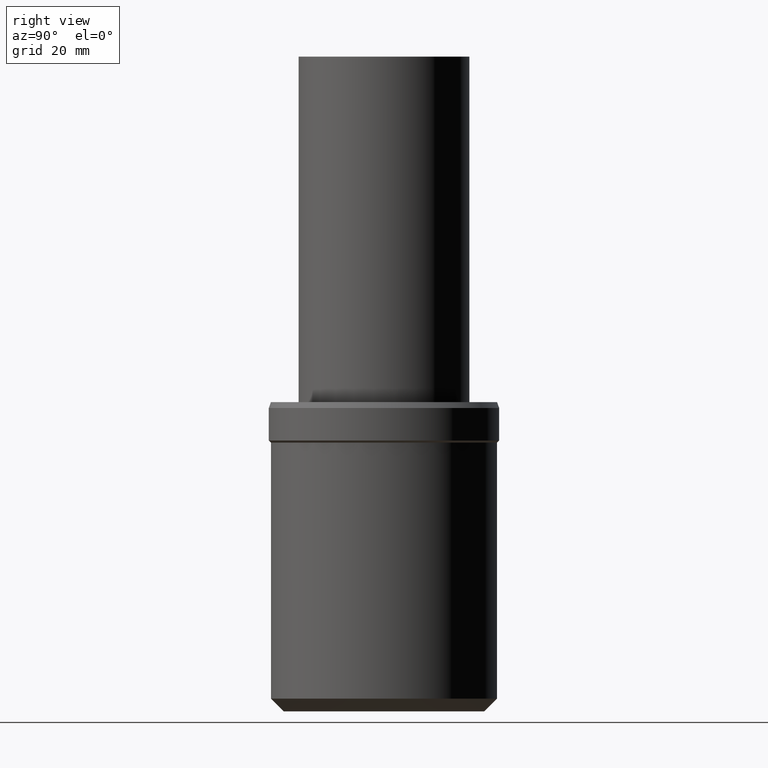
[diagram: clean part render]
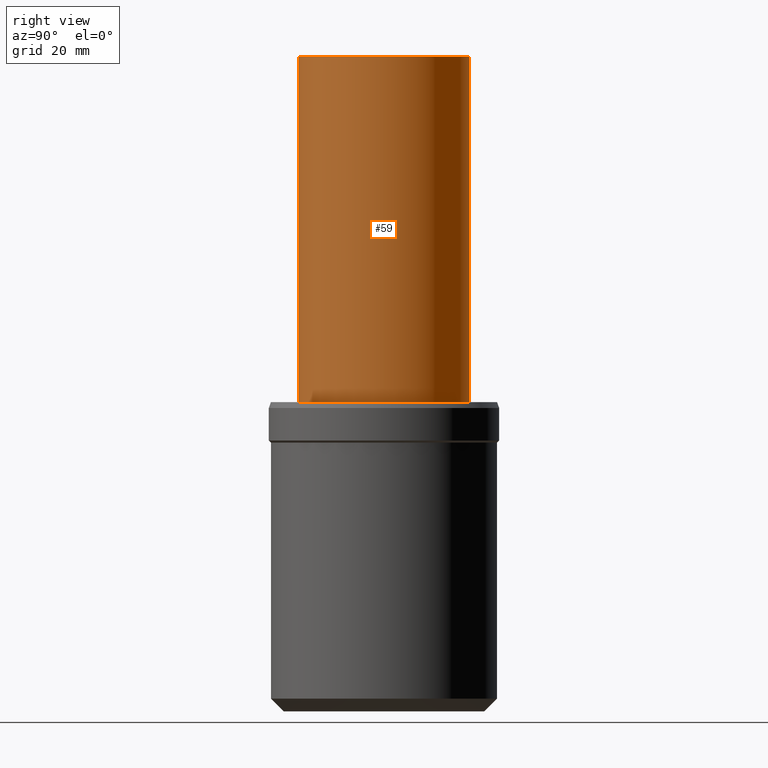
[diagram: same view with one face highlighted and labeled with its STEP entity id]
A machine part, right view. The second image highlights one B-rep face of the part: STEP entity #59.
In plain terms, the highlighted cylindrical surface (bore or boss wall) has radius 20 mm, axis along (0, 0, -1).
Its self-contained STEP definition (entity closure, byte-faithful):
#44=EDGE_CURVE('Unnamed[1]',#107,#107,#108,.T.);
#53=EDGE_CURVE('Unnamed[1]',#119,#119,#120,.T.);
#59=ADVANCED_FACE('Unnamed[1]',(#128,#129),#130,.T.);
#107=VERTEX_POINT('',#185);
#108=CIRCLE('',#186,19.9999999999954);
#119=VERTEX_POINT('',#200);
#120=CIRCLE('',#201,19.9999999999954);
#128=FACE_BOUND('',#211,.T.);
#129=FACE_BOUND('',#212,.T.);
#130=CYLINDRICAL_SURFACE('',#213,19.9999999999954);
#185=CARTESIAN_POINT('',(-9.3991641834559E-015,19.9999999999954,153.499999999999));
#186=AXIS2_PLACEMENT_3D('',#270,#271,#272);
#200=CARTESIAN_POINT('',(-4.43934464690906E-015,19.9999999999954,72.4999999999984));
#201=AXIS2_PLACEMENT_3D('',#280,#281,#282);
#211=EDGE_LOOP('',(#290));
#212=EDGE_LOOP('',(#291));
#213=AXIS2_PLACEMENT_3D('',#292,#293,#294);
#270=CARTESIAN_POINT('',(-9.3991641834559E-015,-1.87983283669118E-014,153.499999999999));
#271=DIRECTION('',(6.12323399573677E-017,1.22464679914735E-016,-1.0));
#272=DIRECTION('',(-1.23259516440783E-032,1.0,1.22464679914735E-016));
#280=CARTESIAN_POINT('',(-4.43934464690906E-015,-8.87868929381811E-015,72.4999999999984));
#281=DIRECTION('',(6.12323399573677E-017,1.22464679914735E-016,-1.0));
#282=DIRECTION('',(-1.23259516440783E-032,1.0,1.22464679914735E-016));
#290=ORIENTED_EDGE('',*,*,#53,.F.);
#291=ORIENTED_EDGE('',*,*,#44,.T.);
#292=CARTESIAN_POINT('',(-6.91925441518248E-015,-1.3838508830365E-014,112.999999999999));
#293=DIRECTION('',(6.12323399573677E-017,1.22464679914735E-016,-1.0));
#294=DIRECTION('',(-1.23259516440783E-032,1.0,1.22464679914735E-016));